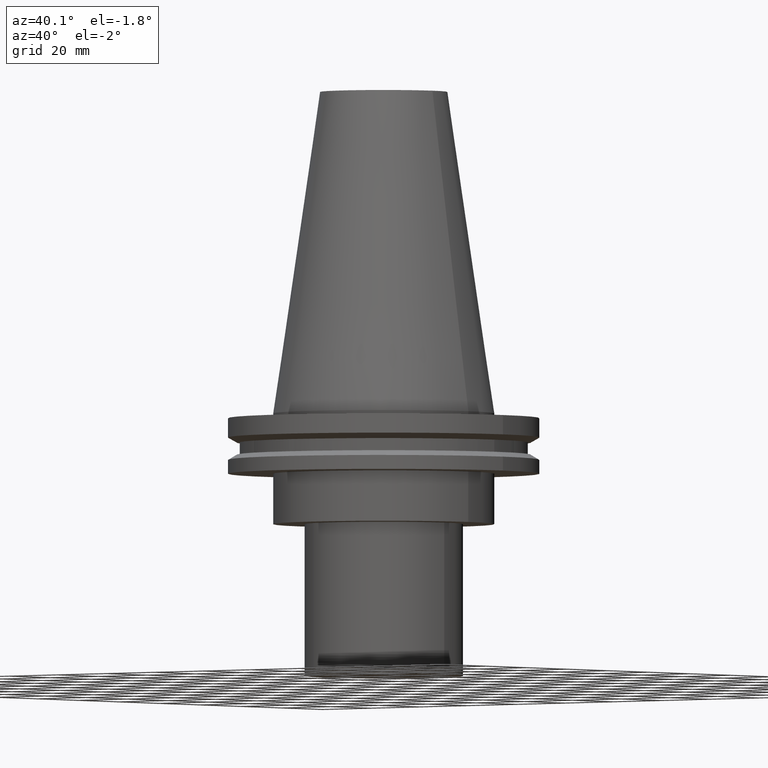
[diagram: clean part render]
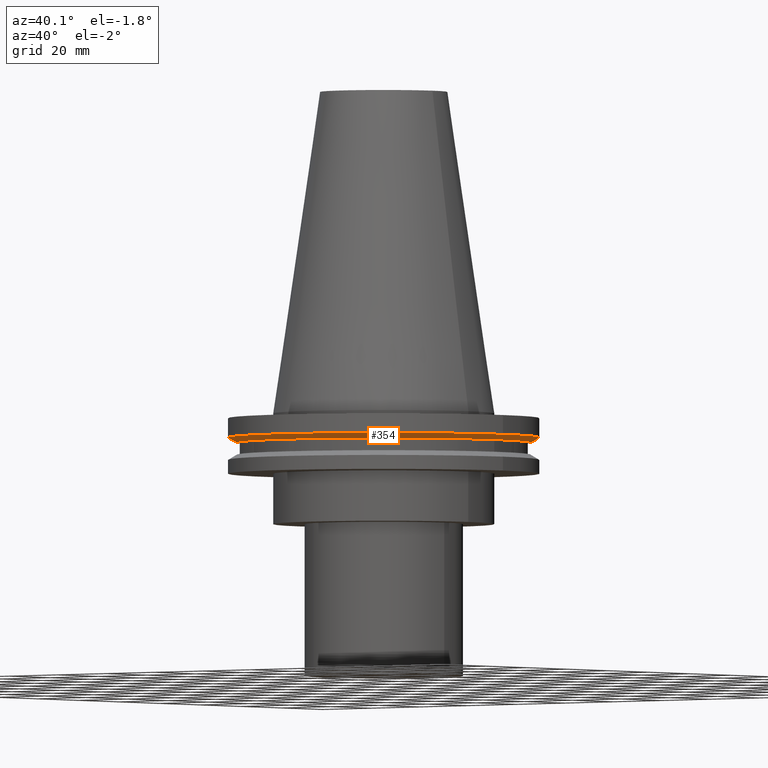
[diagram: same view with one face highlighted and labeled with its STEP entity id]
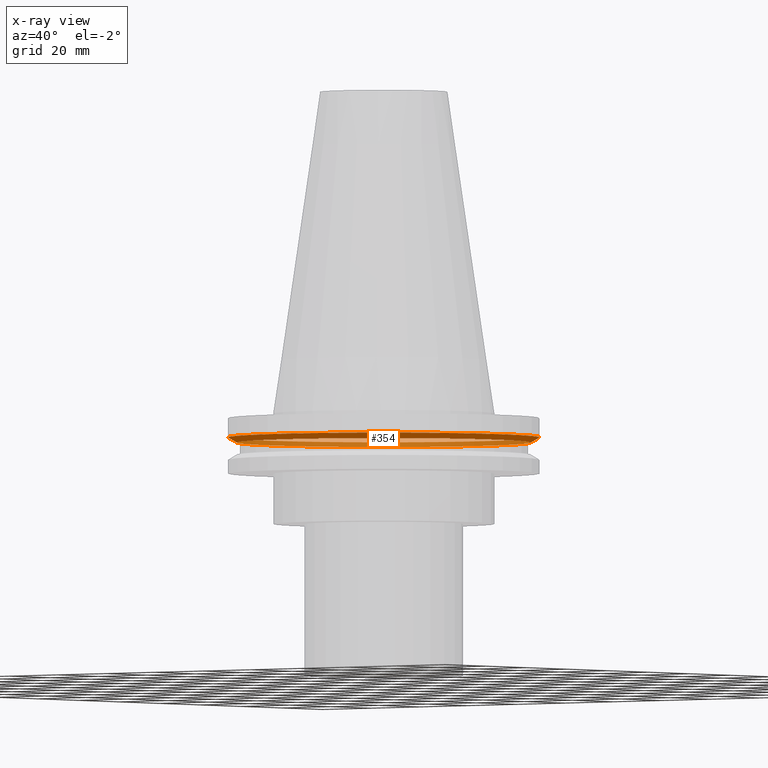
[diagram: x-ray of the same camera — body ghosted, the highlighted face saturated]
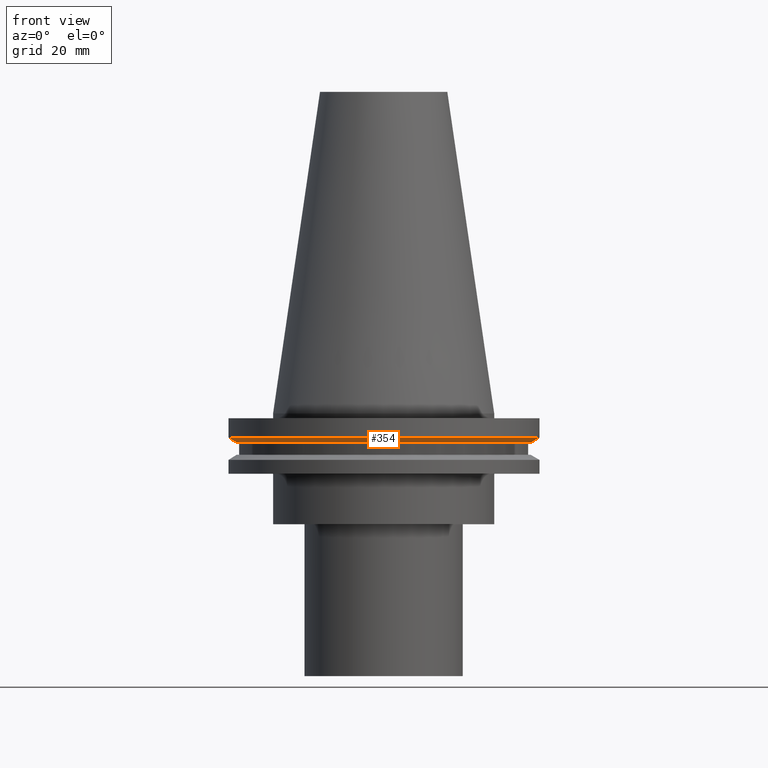
[diagram: same view with one face highlighted and labeled with its STEP entity id]
A machine part, auxiliary view. The second image highlights one B-rep face of the part: STEP entity #354.
The next image is the same camera in x-ray: the body ghosted, the highlighted face saturated — about 44% of this face is hidden behind the body in this view.
A second angle (front view) of the same face is appended — the face is thin or edge-on in the first view.
In plain terms, the highlighted conical surface has half-angle 60 deg.
Its self-contained STEP definition (entity closure, byte-faithful):
#28 = FACE_OUTER_BOUND ( 'NONE', #55, .T. ) ;
#44 = AXIS2_PLACEMENT_3D ( 'NONE', #168, #106, #172 ) ;
#55 = EDGE_LOOP ( 'NONE', ( #86 ) ) ;
#86 = ORIENTED_EDGE ( 'NONE', *, *, #226, .F. ) ;
#93 = CARTESIAN_POINT ( 'NONE',  ( 46.43919780457007818, 0.000000000000000000, -9.204999999999991189 ) ) ;
#99 = DIRECTION ( 'NONE',  ( 1.000000000000000000, 0.000000000000000000, 0.000000000000000000 ) ) ;
#106 = DIRECTION ( 'NONE',  ( -0.000000000000000000, -0.000000000000000000, 1.000000000000000000 ) ) ;
#107 = EDGE_LOOP ( 'NONE', ( #369 ) ) ;
#138 = FACE_BOUND ( 'NONE', #107, .T. ) ;
#152 = EDGE_CURVE ( 'NONE', #341, #341, #215, .T. ) ;
#168 = CARTESIAN_POINT ( 'NONE',  ( 0.000000000000000000, 0.000000000000000000, -9.204999999999991189 ) ) ;
#172 = DIRECTION ( 'NONE',  ( 1.000000000000000000, 0.000000000000000000, 0.000000000000000000 ) ) ;
#215 = CIRCLE ( 'NONE', #285, 46.43919780457007818 ) ;
#226 = EDGE_CURVE ( 'NONE', #307, #307, #245, .T. ) ;
#245 = CIRCLE ( 'NONE', #339, 49.21500000000000341 ) ;
#248 = CARTESIAN_POINT ( 'NONE',  ( 49.21500000000000341, 0.000000000000000000, -7.602389855251287187 ) ) ;
#258 = CARTESIAN_POINT ( 'NONE',  ( 0.000000000000000000, 0.000000000000000000, -9.204999999999991189 ) ) ;
#281 = DIRECTION ( 'NONE',  ( 1.000000000000000000, 0.000000000000000000, 0.000000000000000000 ) ) ;
#285 = AXIS2_PLACEMENT_3D ( 'NONE', #258, #342, #281 ) ;
#292 = CONICAL_SURFACE ( 'NONE', #44, 46.43919780457007818, 1.047197551196575205 ) ;
#307 = VERTEX_POINT ( 'NONE', #248 ) ;
#324 = DIRECTION ( 'NONE',  ( -0.000000000000000000, -0.000000000000000000, 1.000000000000000000 ) ) ;
#339 = AXIS2_PLACEMENT_3D ( 'NONE', #391, #324, #99 ) ;
#341 = VERTEX_POINT ( 'NONE', #93 ) ;
#342 = DIRECTION ( 'NONE',  ( -0.000000000000000000, -0.000000000000000000, 1.000000000000000000 ) ) ;
#354 = ADVANCED_FACE ( 'NONE', ( #28, #138 ), #292, .T. ) ;
#369 = ORIENTED_EDGE ( 'NONE', *, *, #152, .T. ) ;
#391 = CARTESIAN_POINT ( 'NONE',  ( 0.000000000000000000, 0.000000000000000000, -7.602389855251287187 ) ) ;